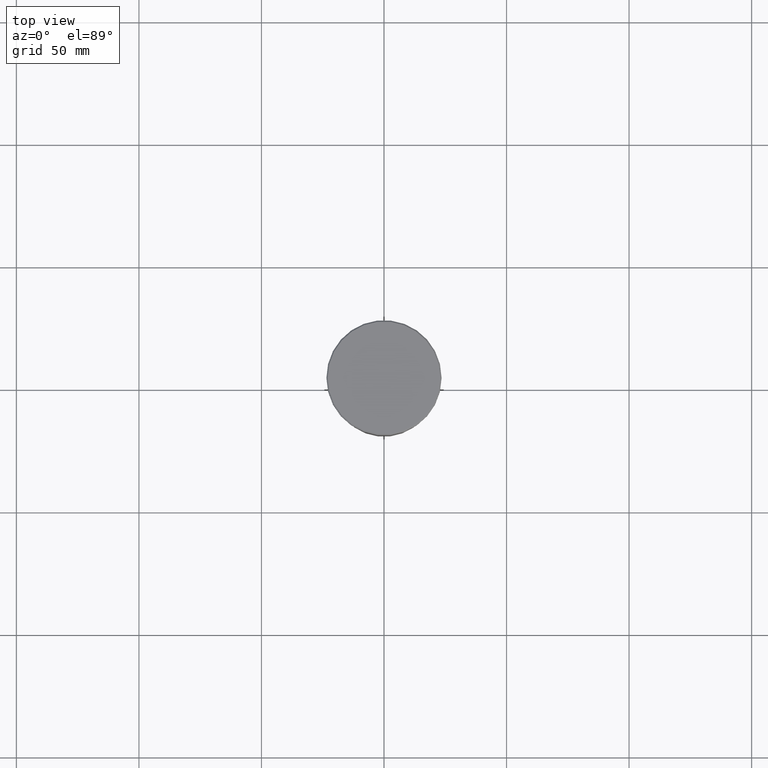
[diagram: clean part render]
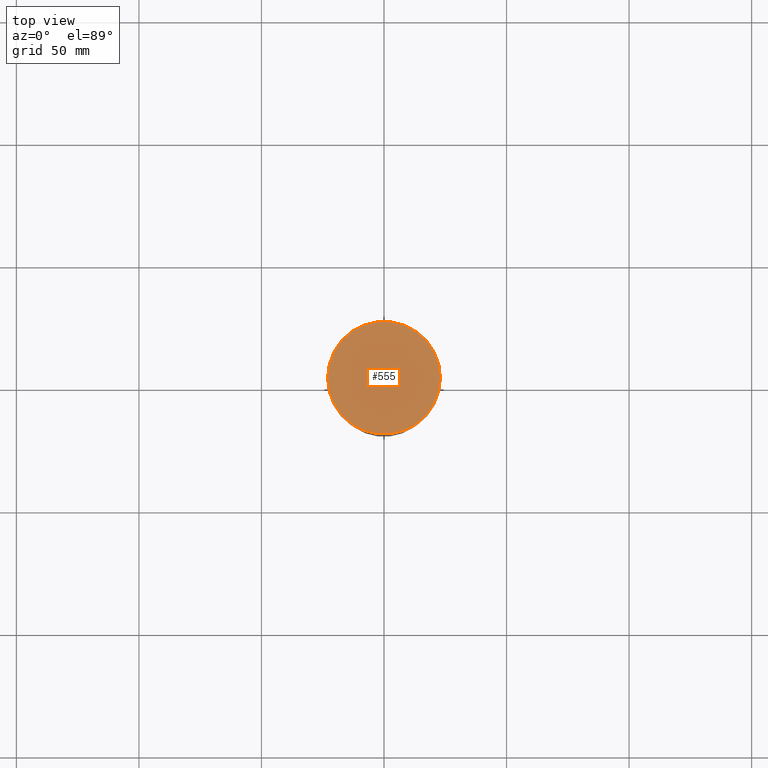
[diagram: same view with one face highlighted and labeled with its STEP entity id]
A machine part, top view. The second image highlights one B-rep face of the part: STEP entity #555.
In plain terms, the highlighted planar face has unit normal (0, -0, 1).
Its self-contained STEP definition (entity closure, byte-faithful):
#60 = VERTEX_POINT ( 'NONE', #464 ) ;
#74 = EDGE_CURVE ( 'NONE', #697, #60, #715, .T. ) ;
#112 = FACE_OUTER_BOUND ( 'NONE', #360, .T. ) ;
#283 = DIRECTION ( 'NONE',  ( 1.000000000000000000, 0.000000000000000000, 0.000000000000000000 ) ) ;
#360 = EDGE_LOOP ( 'NONE', ( #1002, #1026 ) ) ;
#366 = DIRECTION ( 'NONE',  ( 0.000000000000000000, -0.000000000000000000, 1.000000000000000000 ) ) ;
#383 = DIRECTION ( 'NONE',  ( 1.000000000000000000, 0.000000000000000000, 0.000000000000000000 ) ) ;
#386 = CARTESIAN_POINT ( 'NONE',  ( 0.000000000000000000, 0.000000000000000000, 0.000000000000000000 ) ) ;
#449 = CARTESIAN_POINT ( 'NONE',  ( 0.000000000000000000, 0.000000000000000000, 0.000000000000000000 ) ) ;
#453 = PLANE ( 'NONE',  #734 ) ;
#464 = CARTESIAN_POINT ( 'NONE',  ( 22.99999999999993960, 2.847303808017592589E-15, 0.000000000000000000 ) ) ;
#555 = ADVANCED_FACE ( 'NONE', ( #112 ), #453, .T. ) ;
#674 = AXIS2_PLACEMENT_3D ( 'NONE', #449, #727, #834 ) ;
#697 = VERTEX_POINT ( 'NONE', #825 ) ;
#715 = CIRCLE ( 'NONE', #674, 22.99999999999993960 ) ;
#727 = DIRECTION ( 'NONE',  ( -0.000000000000000000, -0.000000000000000000, 1.000000000000000000 ) ) ;
#734 = AXIS2_PLACEMENT_3D ( 'NONE', #826, #366, #283 ) ;
#761 = CIRCLE ( 'NONE', #908, 22.99999999999993960 ) ;
#825 = CARTESIAN_POINT ( 'NONE',  ( -22.99999999999993960, 0.000000000000000000, 0.000000000000000000 ) ) ;
#826 = CARTESIAN_POINT ( 'NONE',  ( 0.000000000000000000, 0.000000000000000000, 0.000000000000000000 ) ) ;
#834 = DIRECTION ( 'NONE',  ( 1.000000000000000000, 0.000000000000000000, 0.000000000000000000 ) ) ;
#880 = EDGE_CURVE ( 'NONE', #60, #697, #761, .T. ) ;
#908 = AXIS2_PLACEMENT_3D ( 'NONE', #386, #1138, #383 ) ;
#1002 = ORIENTED_EDGE ( 'NONE', *, *, #74, .T. ) ;
#1026 = ORIENTED_EDGE ( 'NONE', *, *, #880, .T. ) ;
#1138 = DIRECTION ( 'NONE',  ( -0.000000000000000000, -0.000000000000000000, 1.000000000000000000 ) ) ;